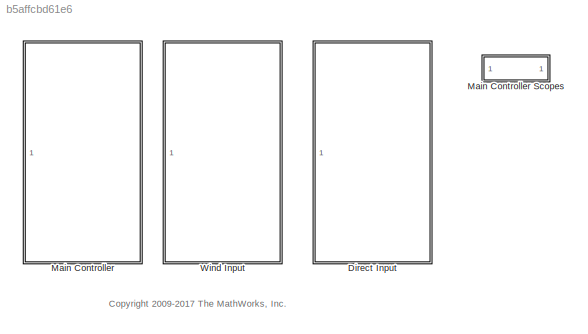
MODEL slx_b5affcbd61e6
KIND library
CONFIG AbsTol = auto
CONFIG EnableMultiTasking = on
CONFIG FixedStep = auto
CONFIG MaxStep = auto
CONFIG MinStep = auto
CONFIG RelTol = 1e-3
CONFIG SampleTimeConstraint = Unconstrained
CONFIG Solver = ode45
CONFIG SolverName = ode45
CONFIG StartTime = 0.0
CONFIG StopTime = 10.0
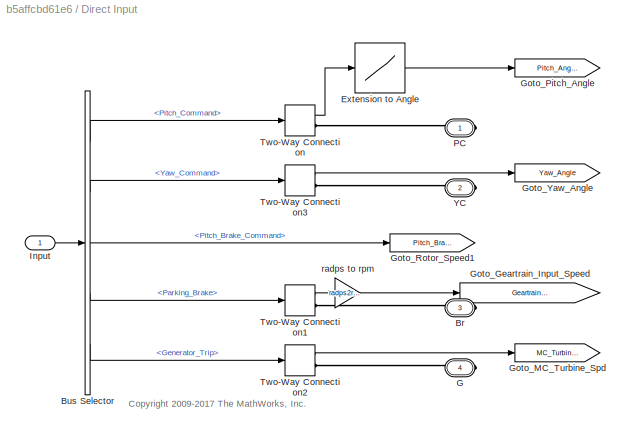
BLOCK [SubSystem] Direct Input
  Ports = [1, 0, 0, 0, 0, 0, 4]
  RequestExecContextInheritance = off
  Variant = off
BLOCK [PMIOPort] Direct Input/Br
  Port = 3
  Side = Right
  Tag = PMCPort
BLOCK [BusSelector] Direct Input/Bus Selector
  OutputAsBus = off
  OutputSignals = Pitch_Command,Yaw_Command,Pitch_Brake_Command,Parking_Brake,Generator_Trip
  Ports = [1, 5]
BLOCK [Lookup] Direct Input/Extension to Angle
  InputValues = Actuator_Lookup.extension
  SaturateOnIntegerOverflow = off
  Table = Actuator_Lookup.angle
BLOCK [PMIOPort] Direct Input/G
  Port = 4
  Side = Right
  Tag = PMCPort
BLOCK [Goto] Direct Input/Goto_Geartrain_Input_Speed
  GotoTag = Geartrain_Input_Speed
  TagVisibility = global
BLOCK [Goto] Direct Input/Goto_MC_Turbine_Spd
  GotoTag = MC_Turbine_Spd
  TagVisibility = global
BLOCK [Goto] Direct Input/Goto_Pitch_Angle
  GotoTag = Pitch_Angle
  TagVisibility = global
BLOCK [Goto] Direct Input/Goto_Rotor_Speed1
  GotoTag = Pitch_Brake
  TagVisibility = global
BLOCK [Goto] Direct Input/Goto_Yaw_Angle
  GotoTag = Yaw_Angle
  TagVisibility = global
BLOCK [Inport] Direct Input/Input
  IconDisplay = Port number
BLOCK [PMIOPort] Direct Input/PC
  Port = 1
  Side = Right
  Tag = PMCPort
BLOCK [TwoWayConnection] Direct Input/Two-Way Connection
  Ports = [1, 1, 0, 0, 0, 0, 1]
BLOCK [TwoWayConnection] Direct Input/Two-Way Connection1
  Ports = [1, 1, 0, 0, 0, 0, 1]
BLOCK [TwoWayConnection] Direct Input/Two-Way Connection2
  Ports = [1, 1, 0, 0, 0, 0, 1]
BLOCK [TwoWayConnection] Direct Input/Two-Way Connection3
  Ports = [1, 1, 0, 0, 0, 0, 1]
BLOCK [PMIOPort] Direct Input/YC
  Port = 2
  Side = Right
  Tag = PMCPort
BLOCK [Gain] Direct Input/radps to rpm
  Gain = radps2rpm
  OutDataTypeStr = Inherit: Inherit via internal rule
  ParamDataTypeStr = Inherit: Inherit via internal rule
  SaturateOnIntegerOverflow = off
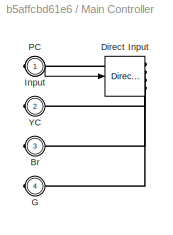
BLOCK [SubSystem] Main Controller
  BlockChoice = Direct Input
  MemberBlocks = Direct Input,Wind Input
  Ports = [1, 0, 0, 0, 0, 0, 4]
  RequestExecContextInheritance = off
  TemplateBlock = self
  Variant = off
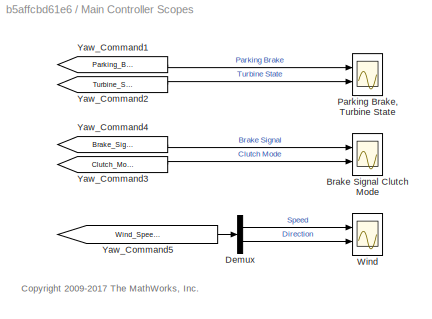
BLOCK [SubSystem] Main Controller Scopes
  Ports = []
  RequestExecContextInheritance = off
  Variant = off
BLOCK [Scope] Main Controller Scopes/Brake Signal Clutch Mode
  NumInputPorts = 2
  Ports = [2]
  ScopeSpecificationString = C++SS(StrPVP('Location','[767, 694, 1090, 930]'),StrPVP('Open','off'),MxPVP('AxesTitles',53,'struct(''axes1'',''%<SignalLabel>'',''axes2'',''%<SignalLabel>'')'),StrPVP('TimeRange','80'),StrPVP('YMin','-1~1'),StrPVP('YMax','1~3'),StrPVP('SaveName','ScopeData9'),StrPVP('DataFormat','StructureWithTime'),StrPVP('LimitDataPoints','off'),StrPVP('BlockParamSampleTime','0'),StrPVP('DataLoggingDecimation',...<+392ch>
BLOCK [Demux] Main Controller Scopes/Demux
  DisplayOption = bar
  Outputs = 2
  Ports = [1, 2]
BLOCK [Scope] Main Controller Scopes/Parking Brake, Turbine State
  NumInputPorts = 2
  Ports = [2]
  ScopeSpecificationString = C++SS(StrPVP('Location','[49, 422, 764, 794]'),StrPVP('Open','off'),MxPVP('AxesTitles',53,'struct(''axes1'',''%<SignalLabel>'',''axes2'',''%<SignalLabel>'')'),StrPVP('TimeRange','80'),StrPVP('YMin','0~0'),StrPVP('YMax','1~3'),StrPVP('SaveName','ScopeData7'),StrPVP('DataFormat','StructureWithTime'),StrPVP('LimitDataPoints','off'),StrPVP('BlockParamSampleTime','0'),StrPVP('DataLoggingDecimation','1'...<+389ch>
BLOCK [Scope] Main Controller Scopes/Wind
  NumInputPorts = 2
  Ports = [2]
  ScopeSpecificationString = C++SS(StrPVP('Location','[581, 610, 1175, 795]'),StrPVP('Open','off'),MxPVP('AxesTitles',53,'struct(''axes1'',''%<SignalLabel>'',''axes2'',''%<SignalLabel>'')'),StrPVP('TimeRange','80'),StrPVP('YMin','0~-5'),StrPVP('YMax','20~5'),StrPVP('SaveToWorkspace','on'),StrPVP('SaveName','Wind_Turbine_Wind_DATA'),StrPVP('DataFormat','StructureWithTime'),StrPVP('LimitDataPoints','off'),StrPVP('BlockParamSamp...<+436ch>
BLOCK [From] Main Controller Scopes/Yaw_Command1
  CloseFcn = tagdialog Close
  GotoTag = Parking_Brake
BLOCK [From] Main Controller Scopes/Yaw_Command2
  CloseFcn = tagdialog Close
  GotoTag = Turbine_State
BLOCK [From] Main Controller Scopes/Yaw_Command3
  CloseFcn = tagdialog Close
  GotoTag = Clutch_Mode
BLOCK [From] Main Controller Scopes/Yaw_Command4
  CloseFcn = tagdialog Close
  GotoTag = Brake_Signal
BLOCK [From] Main Controller Scopes/Yaw_Command5
  CloseFcn = tagdialog Close
  GotoTag = Wind_Speed_Direction
BLOCK [PMIOPort] Main Controller/Br
  Port = 3
  Side = Right
BLOCK [Reference] Main Controller/Direct Input  REF=Main_Controller_Lib/Direct Input
  Ports = [1, 0, 0, 0, 0, 0, 4]
  SourceBlock = Main_Controller_Lib/Direct Input
BLOCK [PMIOPort] Main Controller/G
  Port = 4
  Side = Right
BLOCK [Inport] Main Controller/Input
  IconDisplay = Port number
BLOCK [PMIOPort] Main Controller/PC
  Port = 1
  Side = Right
BLOCK [PMIOPort] Main Controller/YC
  Port = 2
  Side = Right
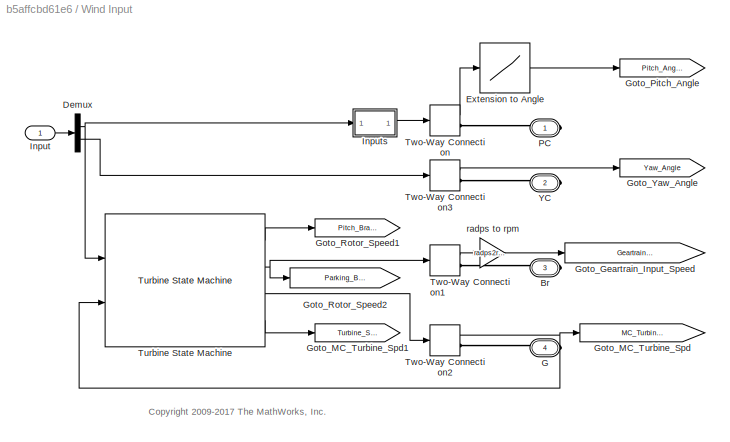
BLOCK [SubSystem] Wind Input
  Ports = [1, 0, 0, 0, 0, 0, 4]
  RequestExecContextInheritance = off
  Variant = off
BLOCK [PMIOPort] Wind Input/Br
  Port = 3
  Side = Right
  Tag = PMCPort
BLOCK [Demux] Wind Input/Demux
  DisplayOption = bar
  Outputs = 2
  Ports = [1, 2]
BLOCK [Lookup] Wind Input/Extension to Angle
  InputValues = Actuator_Lookup.extension
  SaturateOnIntegerOverflow = off
  Table = Actuator_Lookup.angle
BLOCK [PMIOPort] Wind Input/G
  Port = 4
  Side = Right
  Tag = PMCPort
BLOCK [Goto] Wind Input/Goto_Geartrain_Input_Speed
  GotoTag = Geartrain_Input_Speed
  TagVisibility = global
BLOCK [Goto] Wind Input/Goto_MC_Turbine_Spd
  GotoTag = MC_Turbine_Spd
  TagVisibility = global
BLOCK [Goto] Wind Input/Goto_MC_Turbine_Spd1
  GotoTag = Turbine_State
  TagVisibility = global
BLOCK [Goto] Wind Input/Goto_Pitch_Angle
  GotoTag = Pitch_Angle
  TagVisibility = global
BLOCK [Goto] Wind Input/Goto_Rotor_Speed1
  GotoTag = Pitch_Brake
  TagVisibility = global
BLOCK [Goto] Wind Input/Goto_Rotor_Speed2
  GotoTag = Parking_Brake
  TagVisibility = global
BLOCK [Goto] Wind Input/Goto_Yaw_Angle
  GotoTag = Yaw_Angle
  TagVisibility = global
BLOCK [Inport] Wind Input/Input
  IconDisplay = Port number
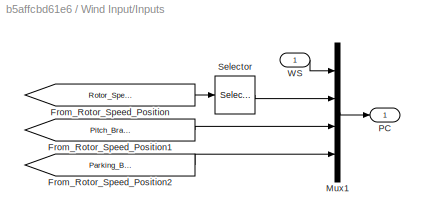
BLOCK [SubSystem] Wind Input/Inputs
  Ports = [1, 1]
  RequestExecContextInheritance = off
  Variant = off
BLOCK [From] Wind Input/Inputs/From_Rotor_Speed_Position
  CloseFcn = tagdialog Close
  GotoTag = Rotor_Speed_Position
  TagVisibility = global
BLOCK [From] Wind Input/Inputs/From_Rotor_Speed_Position1
  CloseFcn = tagdialog Close
  GotoTag = Pitch_Brake
  TagVisibility = global
BLOCK [From] Wind Input/Inputs/From_Rotor_Speed_Position2
  CloseFcn = tagdialog Close
  GotoTag = Parking_Brake
  TagVisibility = global
BLOCK [Mux] Wind Input/Inputs/Mux1
  DisplayOption = bar
  Ports = [4, 1]
BLOCK [Outport] Wind Input/Inputs/PC
  IconDisplay = Port number
BLOCK [Selector] Wind Input/Inputs/Selector
  IndexOptions = Index vector (dialog)
  Indices = [2]
  InputPortWidth = 2
  OutputSizes = 1
  Ports = [1, 1]
BLOCK [Inport] Wind Input/Inputs/WS
  IconDisplay = Port number
BLOCK [PMIOPort] Wind Input/PC
  Port = 1
  Side = Right
  Tag = PMCPort
BLOCK [Reference] Wind Input/Turbine State Machine  REF=Turbine_State_Machine_Lib/Turbine State Machine
  Ports = [2, 4]
  SourceBlock = Turbine_State_Machine_Lib/Turbine State Machine
  SourceType = SubSystem
BLOCK [TwoWayConnection] Wind Input/Two-Way Connection
  Ports = [1, 1, 0, 0, 0, 0, 1]
BLOCK [TwoWayConnection] Wind Input/Two-Way Connection1
  Ports = [1, 1, 0, 0, 0, 0, 1]
BLOCK [TwoWayConnection] Wind Input/Two-Way Connection2
  Ports = [1, 1, 0, 0, 0, 0, 1]
BLOCK [TwoWayConnection] Wind Input/Two-Way Connection3
  Ports = [1, 1, 0, 0, 0, 0, 1]
BLOCK [PMIOPort] Wind Input/YC
  Port = 2
  Side = Right
  Tag = PMCPort
BLOCK [Gain] Wind Input/radps to rpm
  Gain = radps2rpm
  OutDataTypeStr = Inherit: Inherit via internal rule
  ParamDataTypeStr = Inherit: Inherit via internal rule
  SaturateOnIntegerOverflow = off
ANNOTATION (root): <copyright redacted>
ANNOTATION Direct Input: <copyright redacted>
ANNOTATION Main Controller Scopes: <copyright redacted>
ANNOTATION Wind Input: <copyright redacted>
LINE Direct Input/Bus Selector:1 -> Direct Input/Two-Way Connection:1
LINE Direct Input/Bus Selector:2 -> Direct Input/Two-Way Connection3:1
LINE Direct Input/Bus Selector:3 -> Direct Input/Goto_Rotor_Speed1:1
LINE Direct Input/Bus Selector:4 -> Direct Input/Two-Way Connection1:1
LINE Direct Input/Bus Selector:5 -> Direct Input/Two-Way Connection2:1
LINE Direct Input/Extension to Angle:1 -> Direct Input/Goto_Pitch_Angle:1
LINE Direct Input/Input:1 -> Direct Input/Bus Selector:1
LINE Direct Input/Two-Way Connection1:1 -> Direct Input/radps to rpm:1
LINE Direct Input/Two-Way Connection2:1 -> Direct Input/Goto_MC_Turbine_Spd:1
LINE Direct Input/Two-Way Connection3:1 -> Direct Input/Goto_Yaw_Angle:1
LINE Direct Input/Two-Way Connection:1 -> Direct Input/Extension to Angle:1
LINE Direct Input/radps to rpm:1 -> Direct Input/Goto_Geartrain_Input_Speed:1
LINE Main Controller Scopes/Demux:1 -> Main Controller Scopes/Wind:1
LINE Main Controller Scopes/Demux:2 -> Main Controller Scopes/Wind:2
LINE Main Controller Scopes/Yaw_Command1:1 -> Main Controller Scopes/Parking Brake, Turbine State:1
LINE Main Controller Scopes/Yaw_Command2:1 -> Main Controller Scopes/Parking Brake, Turbine State:2
LINE Main Controller Scopes/Yaw_Command3:1 -> Main Controller Scopes/Brake Signal Clutch Mode:2
LINE Main Controller Scopes/Yaw_Command4:1 -> Main Controller Scopes/Brake Signal Clutch Mode:1
LINE Main Controller Scopes/Yaw_Command5:1 -> Main Controller Scopes/Demux:1
LINE Main Controller/Input:1 -> Main Controller/Direct Input:1
NET Wind Input/Demux:1 -> Wind Input/Inputs:1, Wind Input/Turbine State Machine:1
LINE Wind Input/Demux:2 -> Wind Input/Two-Way Connection3:1
LINE Wind Input/Extension to Angle:1 -> Wind Input/Goto_Pitch_Angle:1
LINE Wind Input/Input:1 -> Wind Input/Demux:1
LINE Wind Input/Inputs/From_Rotor_Speed_Position1:1 -> Wind Input/Inputs/Mux1:3
LINE Wind Input/Inputs/From_Rotor_Speed_Position2:1 -> Wind Input/Inputs/Mux1:4
LINE Wind Input/Inputs/From_Rotor_Speed_Position:1 -> Wind Input/Inputs/Selector:1
LINE Wind Input/Inputs/Mux1:1 -> Wind Input/Inputs/PC:1
LINE Wind Input/Inputs/Selector:1 -> Wind Input/Inputs/Mux1:2
LINE Wind Input/Inputs/WS:1 -> Wind Input/Inputs/Mux1:1
LINE Wind Input/Inputs:1 -> Wind Input/Two-Way Connection:1
LINE Wind Input/Turbine State Machine:1 -> Wind Input/Goto_Rotor_Speed1:1
NET Wind Input/Turbine State Machine:2 -> Wind Input/Goto_Rotor_Speed2:1, Wind Input/Two-Way Connection1:1
LINE Wind Input/Turbine State Machine:3 -> Wind Input/Two-Way Connection2:1
LINE Wind Input/Turbine State Machine:4 -> Wind Input/Goto_MC_Turbine_Spd1:1
LINE Wind Input/Two-Way Connection1:1 -> Wind Input/radps to rpm:1
NET Wind Input/Two-Way Connection2:1 -> Wind Input/Goto_MC_Turbine_Spd:1, Wind Input/Turbine State Machine:2
LINE Wind Input/Two-Way Connection3:1 -> Wind Input/Goto_Yaw_Angle:1
LINE Wind Input/Two-Way Connection:1 -> Wind Input/Extension to Angle:1
LINE Wind Input/radps to rpm:1 -> Wind Input/Goto_Geartrain_Input_Speed:1
PLINE Direct Input/Br:RConn1 -- Direct Input/Two-Way Connection1:RConn1
PLINE Direct Input/G:RConn1 -- Direct Input/Two-Way Connection2:RConn1
PLINE Direct Input/PC:RConn1 -- Direct Input/Two-Way Connection:RConn1
PLINE Direct Input/Two-Way Connection3:RConn1 -- Direct Input/YC:RConn1
PLINE Main Controller/Br:RConn1 -- Main Controller/Direct Input:RConn3
PLINE Main Controller/Direct Input:RConn1 -- Main Controller/PC:RConn1
PLINE Main Controller/Direct Input:RConn2 -- Main Controller/YC:RConn1
PLINE Main Controller/Direct Input:RConn4 -- Main Controller/G:RConn1
PLINE Wind Input/Br:RConn1 -- Wind Input/Two-Way Connection1:RConn1
PLINE Wind Input/G:RConn1 -- Wind Input/Two-Way Connection2:RConn1
PLINE Wind Input/PC:RConn1 -- Wind Input/Two-Way Connection:RConn1
PLINE Wind Input/Two-Way Connection3:RConn1 -- Wind Input/YC:RConn1
note: NET lines group one-source signal fan-out (src -> all destinations, sorted); 1:1 wires keep LINE
